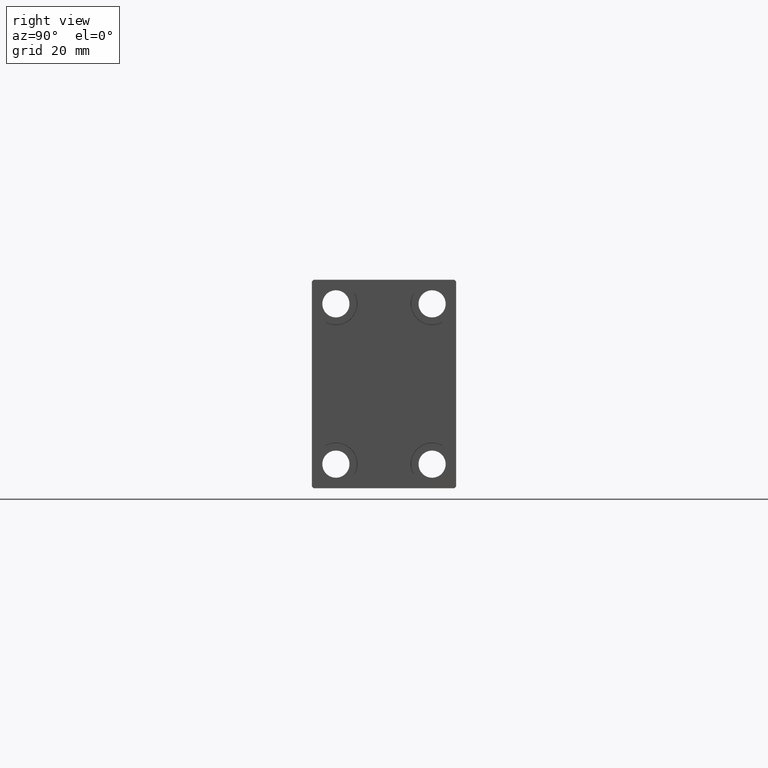
[diagram: clean part render]
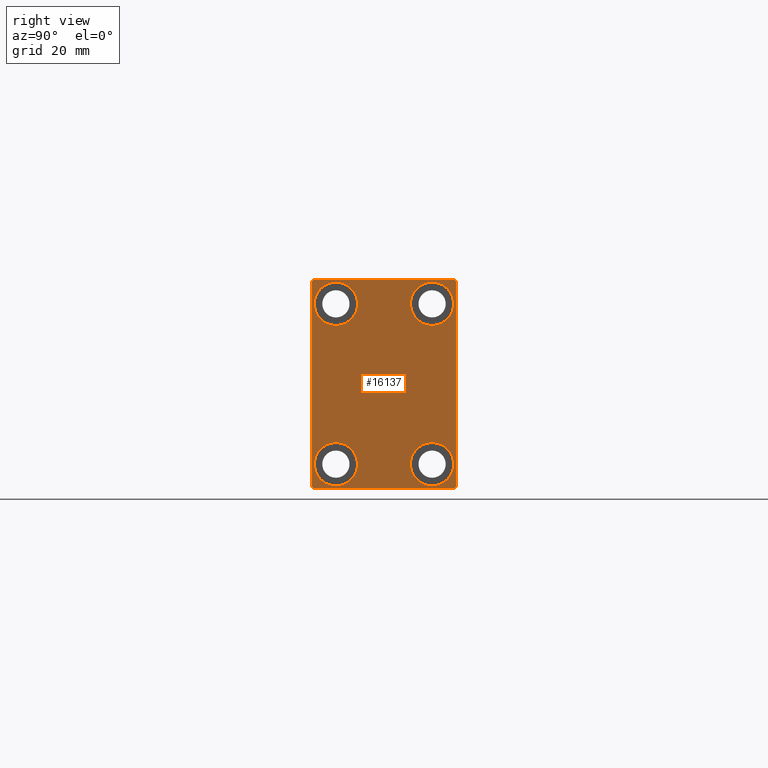
[diagram: same view with one face highlighted and labeled with its STEP entity id]
A machine part, right view. The second image highlights one B-rep face of the part: STEP entity #16137.
In plain terms, the highlighted planar face has unit normal (1, 0, 0).
Its self-contained STEP definition (entity closure, byte-faithful):
#567 = CARTESIAN_POINT ( 'NONE',  ( 150.0000000000000000, 21.99999999999998579, -32.50000000000000711 ) ) ;
#649 = EDGE_CURVE ( 'NONE', #1044, #26526, #34810, .T. ) ;
#989 = EDGE_LOOP ( 'NONE', ( #41905, #30861 ) ) ;
#1044 = VERTEX_POINT ( 'NONE', #29695 ) ;
#1112 = VERTEX_POINT ( 'NONE', #21645 ) ;
#1238 = CARTESIAN_POINT ( 'NONE',  ( 150.0000000000000000, -22.50000000000000711, 31.99999999999999289 ) ) ;
#2074 = EDGE_LOOP ( 'NONE', ( #16953, #6881 ) ) ;
#2586 = FACE_BOUND ( 'NONE', #989, .T. ) ;
#2670 = AXIS2_PLACEMENT_3D ( 'NONE', #9249, #5929, #45685 ) ;
#2984 = CARTESIAN_POINT ( 'NONE',  ( 150.0000000000000000, 22.50000000000000000, -32.50000000000000711 ) ) ;
#3573 = CARTESIAN_POINT ( 'NONE',  ( 150.0000000000000000, -15.00000000000000355, -25.00000000000000000 ) ) ;
#3989 = DIRECTION ( 'NONE',  ( 0.000000000000000000, 0.000000000000000000, 1.000000000000000000 ) ) ;
#4065 = DIRECTION ( 'NONE',  ( -1.000000000000000000, -0.000000000000000000, -0.000000000000000000 ) ) ;
#4277 = ORIENTED_EDGE ( 'NONE', *, *, #41265, .T. ) ;
#4505 = DIRECTION ( 'NONE',  ( 0.000000000000000000, 0.000000000000000000, 1.000000000000000000 ) ) ;
#4676 = EDGE_CURVE ( 'NONE', #26526, #17345, #16678, .T. ) ;
#4710 = VERTEX_POINT ( 'NONE', #39144 ) ;
#4813 = VERTEX_POINT ( 'NONE', #567 ) ;
#5187 = CARTESIAN_POINT ( 'NONE',  ( 150.0000000000000000, -14.99999999999999645, 31.75000000000000000 ) ) ;
#5560 = VERTEX_POINT ( 'NONE', #14944 ) ;
#5641 = ORIENTED_EDGE ( 'NONE', *, *, #29807, .T. ) ;
#5674 = CARTESIAN_POINT ( 'NONE',  ( 150.0000000000000000, 15.00000000000000355, 25.00000000000000000 ) ) ;
#5929 = DIRECTION ( 'NONE',  ( 1.000000000000000000, 0.000000000000000000, 0.000000000000000000 ) ) ;
#6172 = ORIENTED_EDGE ( 'NONE', *, *, #11635, .T. ) ;
#6417 = EDGE_CURVE ( 'NONE', #4813, #18456, #39580, .T. ) ;
#6881 = ORIENTED_EDGE ( 'NONE', *, *, #16890, .T. ) ;
#7388 = DIRECTION ( 'NONE',  ( 0.000000000000000000, 0.000000000000000000, 1.000000000000000000 ) ) ;
#7627 = CARTESIAN_POINT ( 'NONE',  ( 150.0000000000000000, -15.00000000000000355, -25.00000000000000000 ) ) ;
#7633 = CARTESIAN_POINT ( 'NONE',  ( 150.0000000000000000, 27.25000000000000355, -27.25000000000000355 ) ) ;
#7831 = VERTEX_POINT ( 'NONE', #42375 ) ;
#8376 = FACE_BOUND ( 'NONE', #44613, .T. ) ;
#8517 = DIRECTION ( 'NONE',  ( -1.000000000000000000, -0.000000000000000000, -0.000000000000000000 ) ) ;
#8576 = CARTESIAN_POINT ( 'NONE',  ( 150.0000000000000000, 22.49999999999999289, 32.50000000000000000 ) ) ;
#8871 = ORIENTED_EDGE ( 'NONE', *, *, #26902, .T. ) ;
#8972 = ORIENTED_EDGE ( 'NONE', *, *, #43637, .T. ) ;
#8992 = VECTOR ( 'NONE', #40988, 1000.000000000000000 ) ;
#9249 = CARTESIAN_POINT ( 'NONE',  ( 150.0000000000000000, 0.000000000000000000, 0.000000000000000000 ) ) ;
#9294 = VECTOR ( 'NONE', #11564, 1000.000000000000000 ) ;
#9473 = PLANE ( 'NONE',  #2670 ) ;
#9487 = VECTOR ( 'NONE', #10559, 1000.000000000000000 ) ;
#9682 = LINE ( 'NONE', #45890, #45958 ) ;
#9819 = CARTESIAN_POINT ( 'NONE',  ( 150.0000000000000000, -22.50000000000000711, -31.99999999999997868 ) ) ;
#9956 = CIRCLE ( 'NONE', #36398, 6.749999999999999112 ) ;
#10559 = DIRECTION ( 'NONE',  ( 0.000000000000000000, -1.067522139062650425E-16, 1.000000000000000000 ) ) ;
#10656 = ORIENTED_EDGE ( 'NONE', *, *, #23247, .T. ) ;
#11339 = AXIS2_PLACEMENT_3D ( 'NONE', #30509, #8517, #38065 ) ;
#11564 = DIRECTION ( 'NONE',  ( 0.000000000000000000, 0.000000000000000000, -1.000000000000000000 ) ) ;
#11635 = EDGE_CURVE ( 'NONE', #18456, #44693, #42984, .T. ) ;
#12108 = LINE ( 'NONE', #8576, #8992 ) ;
#12215 = VERTEX_POINT ( 'NONE', #5187 ) ;
#12800 = FACE_OUTER_BOUND ( 'NONE', #39322, .T. ) ;
#12960 = CARTESIAN_POINT ( 'NONE',  ( 150.0000000000000000, -14.99999999999999645, 25.00000000000000000 ) ) ;
#12992 = DIRECTION ( 'NONE',  ( -1.000000000000000000, -0.000000000000000000, -0.000000000000000000 ) ) ;
#13207 = CARTESIAN_POINT ( 'NONE',  ( 150.0000000000000000, 22.49999999999999289, 32.00000000000002132 ) ) ;
#13459 = DIRECTION ( 'NONE',  ( -0.000000000000000000, -0.7071067811865525687, 0.7071067811865425767 ) ) ;
#13725 = VECTOR ( 'NONE', #25758, 999.9999999999998863 ) ;
#14700 = DIRECTION ( 'NONE',  ( -1.000000000000000000, -0.000000000000000000, -0.000000000000000000 ) ) ;
#14937 = ORIENTED_EDGE ( 'NONE', *, *, #649, .T. ) ;
#14944 = CARTESIAN_POINT ( 'NONE',  ( 150.0000000000000000, 15.00000000000000355, 31.75000000000000000 ) ) ;
#15220 = EDGE_CURVE ( 'NONE', #4710, #12215, #30741, .T. ) ;
#15836 = LINE ( 'NONE', #37131, #13725 ) ;
#16137 = ADVANCED_FACE ( 'NONE', ( #8376, #2586, #45231, #18995, #12800 ), #9473, .T. ) ;
#16678 = LINE ( 'NONE', #43996, #9294 ) ;
#16890 = EDGE_CURVE ( 'NONE', #24660, #46171, #44282, .T. ) ;
#16953 = ORIENTED_EDGE ( 'NONE', *, *, #42888, .T. ) ;
#17345 = VERTEX_POINT ( 'NONE', #9819 ) ;
#17462 = AXIS2_PLACEMENT_3D ( 'NONE', #7627, #4065, #7388 ) ;
#18098 = CIRCLE ( 'NONE', #38521, 6.749999999999999112 ) ;
#18456 = VERTEX_POINT ( 'NONE', #46247 ) ;
#18995 = FACE_BOUND ( 'NONE', #2074, .T. ) ;
#19342 = ORIENTED_EDGE ( 'NONE', *, *, #35374, .T. ) ;
#20352 = CARTESIAN_POINT ( 'NONE',  ( 150.0000000000000000, -22.50000000000000711, -32.50000000000000711 ) ) ;
#21645 = CARTESIAN_POINT ( 'NONE',  ( 150.0000000000000000, -21.99999999999999289, -32.50000000000000711 ) ) ;
#21819 = DIRECTION ( 'NONE',  ( -0.000000000000000000, 0.7071067811865474617, 0.7071067811865474617 ) ) ;
#23247 = EDGE_CURVE ( 'NONE', #44693, #7831, #9682, .T. ) ;
#23467 = CARTESIAN_POINT ( 'NONE',  ( 150.0000000000000000, -27.25000000000000000, 27.25000000000000000 ) ) ;
#23859 = AXIS2_PLACEMENT_3D ( 'NONE', #3573, #14700, #29128 ) ;
#23927 = AXIS2_PLACEMENT_3D ( 'NONE', #12960, #40916, #27391 ) ;
#24660 = VERTEX_POINT ( 'NONE', #26288 ) ;
#24704 = EDGE_CURVE ( 'NONE', #7831, #1044, #12108, .T. ) ;
#24757 = DIRECTION ( 'NONE',  ( 0.000000000000000000, 0.000000000000000000, 1.000000000000000000 ) ) ;
#25391 = VERTEX_POINT ( 'NONE', #44063 ) ;
#25549 = AXIS2_PLACEMENT_3D ( 'NONE', #28785, #42995, #24757 ) ;
#25758 = DIRECTION ( 'NONE',  ( -0.000000000000000000, 0.7071067811865376918, -0.7071067811865574537 ) ) ;
#25989 = DIRECTION ( 'NONE',  ( -1.000000000000000000, -0.000000000000000000, -0.000000000000000000 ) ) ;
#26288 = CARTESIAN_POINT ( 'NONE',  ( 150.0000000000000000, -15.00000000000000355, -18.25000000000000355 ) ) ;
#26444 = CIRCLE ( 'NONE', #11339, 6.749999999999999112 ) ;
#26526 = VERTEX_POINT ( 'NONE', #1238 ) ;
#26902 = EDGE_CURVE ( 'NONE', #25391, #5560, #18098, .T. ) ;
#27391 = DIRECTION ( 'NONE',  ( 0.000000000000000000, 0.000000000000000000, 1.000000000000000000 ) ) ;
#28785 = CARTESIAN_POINT ( 'NONE',  ( 150.0000000000000000, -14.99999999999999645, 25.00000000000000000 ) ) ;
#29128 = DIRECTION ( 'NONE',  ( 0.000000000000000000, 0.000000000000000000, 1.000000000000000000 ) ) ;
#29695 = CARTESIAN_POINT ( 'NONE',  ( 150.0000000000000000, -21.99999999999999289, 32.49999999999999289 ) ) ;
#29807 = EDGE_CURVE ( 'NONE', #45854, #34776, #9956, .T. ) ;
#30509 = CARTESIAN_POINT ( 'NONE',  ( 150.0000000000000000, 14.99999999999999645, -25.00000000000000000 ) ) ;
#30545 = ORIENTED_EDGE ( 'NONE', *, *, #4676, .T. ) ;
#30741 = CIRCLE ( 'NONE', #23927, 6.749999999999999112 ) ;
#30861 = ORIENTED_EDGE ( 'NONE', *, *, #31340, .T. ) ;
#31066 = CIRCLE ( 'NONE', #17462, 6.749999999999999112 ) ;
#31340 = EDGE_CURVE ( 'NONE', #12215, #4710, #39137, .T. ) ;
#31616 = EDGE_LOOP ( 'NONE', ( #8871, #8972 ) ) ;
#31686 = ORIENTED_EDGE ( 'NONE', *, *, #44595, .T. ) ;
#31857 = AXIS2_PLACEMENT_3D ( 'NONE', #33330, #25989, #3989 ) ;
#32200 = ORIENTED_EDGE ( 'NONE', *, *, #24704, .T. ) ;
#32464 = CARTESIAN_POINT ( 'NONE',  ( 150.0000000000000000, -15.00000000000000355, -31.75000000000000000 ) ) ;
#33330 = CARTESIAN_POINT ( 'NONE',  ( 150.0000000000000000, 15.00000000000000355, 25.00000000000000000 ) ) ;
#33614 = DIRECTION ( 'NONE',  ( -1.000000000000000000, -0.000000000000000000, -0.000000000000000000 ) ) ;
#34776 = VERTEX_POINT ( 'NONE', #44403 ) ;
#34796 = DIRECTION ( 'NONE',  ( 0.000000000000000000, 1.000000000000000000, 0.000000000000000000 ) ) ;
#34810 = LINE ( 'NONE', #23467, #38635 ) ;
#34917 = CARTESIAN_POINT ( 'NONE',  ( 150.0000000000000000, 14.99999999999999645, -18.25000000000000355 ) ) ;
#35019 = LINE ( 'NONE', #20352, #39336 ) ;
#35374 = EDGE_CURVE ( 'NONE', #34776, #45854, #26444, .T. ) ;
#36398 = AXIS2_PLACEMENT_3D ( 'NONE', #36916, #33614, #4505 ) ;
#36916 = CARTESIAN_POINT ( 'NONE',  ( 150.0000000000000000, 14.99999999999999645, -25.00000000000000000 ) ) ;
#37131 = CARTESIAN_POINT ( 'NONE',  ( 150.0000000000000000, -27.25000000000030553, -27.24999999999954881 ) ) ;
#37850 = DIRECTION ( 'NONE',  ( 0.000000000000000000, 0.000000000000000000, 1.000000000000000000 ) ) ;
#38065 = DIRECTION ( 'NONE',  ( 0.000000000000000000, 0.000000000000000000, 1.000000000000000000 ) ) ;
#38521 = AXIS2_PLACEMENT_3D ( 'NONE', #5674, #12992, #37850 ) ;
#38635 = VECTOR ( 'NONE', #42141, 1000.000000000000114 ) ;
#39137 = CIRCLE ( 'NONE', #25549, 6.749999999999999112 ) ;
#39144 = CARTESIAN_POINT ( 'NONE',  ( 150.0000000000000000, -14.99999999999999645, 18.25000000000000355 ) ) ;
#39322 = EDGE_LOOP ( 'NONE', ( #32200, #14937, #30545, #31686, #4277, #40644, #6172, #10656 ) ) ;
#39336 = VECTOR ( 'NONE', #34796, 1000.000000000000000 ) ;
#39580 = LINE ( 'NONE', #7633, #41089 ) ;
#40192 = CIRCLE ( 'NONE', #31857, 6.749999999999999112 ) ;
#40644 = ORIENTED_EDGE ( 'NONE', *, *, #6417, .T. ) ;
#40916 = DIRECTION ( 'NONE',  ( -1.000000000000000000, -0.000000000000000000, -0.000000000000000000 ) ) ;
#40988 = DIRECTION ( 'NONE',  ( 0.000000000000000000, -1.000000000000000000, -1.541976423090495387E-16 ) ) ;
#41089 = VECTOR ( 'NONE', #21819, 1000.000000000000114 ) ;
#41265 = EDGE_CURVE ( 'NONE', #1112, #4813, #35019, .T. ) ;
#41905 = ORIENTED_EDGE ( 'NONE', *, *, #15220, .T. ) ;
#42141 = DIRECTION ( 'NONE',  ( 0.000000000000000000, -0.7071067811865474617, -0.7071067811865474617 ) ) ;
#42375 = CARTESIAN_POINT ( 'NONE',  ( 150.0000000000000000, 22.00000000000000711, 32.50000000000000000 ) ) ;
#42888 = EDGE_CURVE ( 'NONE', #46171, #24660, #31066, .T. ) ;
#42984 = LINE ( 'NONE', #2984, #9487 ) ;
#42995 = DIRECTION ( 'NONE',  ( -1.000000000000000000, -0.000000000000000000, -0.000000000000000000 ) ) ;
#43637 = EDGE_CURVE ( 'NONE', #5560, #25391, #40192, .T. ) ;
#43996 = CARTESIAN_POINT ( 'NONE',  ( 150.0000000000000000, -22.50000000000000711, 32.49999999999999289 ) ) ;
#44063 = CARTESIAN_POINT ( 'NONE',  ( 150.0000000000000000, 15.00000000000000355, 18.25000000000000355 ) ) ;
#44282 = CIRCLE ( 'NONE', #23859, 6.749999999999999112 ) ;
#44403 = CARTESIAN_POINT ( 'NONE',  ( 150.0000000000000000, 14.99999999999999645, -31.75000000000000000 ) ) ;
#44595 = EDGE_CURVE ( 'NONE', #17345, #1112, #15836, .T. ) ;
#44613 = EDGE_LOOP ( 'NONE', ( #19342, #5641 ) ) ;
#44693 = VERTEX_POINT ( 'NONE', #13207 ) ;
#45231 = FACE_BOUND ( 'NONE', #31616, .T. ) ;
#45685 = DIRECTION ( 'NONE',  ( 0.000000000000000000, 0.000000000000000000, -1.000000000000000000 ) ) ;
#45854 = VERTEX_POINT ( 'NONE', #34917 ) ;
#45890 = CARTESIAN_POINT ( 'NONE',  ( 150.0000000000000000, 27.24999999999985079, 27.25000000000023093 ) ) ;
#45958 = VECTOR ( 'NONE', #13459, 999.9999999999998863 ) ;
#46171 = VERTEX_POINT ( 'NONE', #32464 ) ;
#46247 = CARTESIAN_POINT ( 'NONE',  ( 150.0000000000000000, 22.50000000000000000, -32.00000000000000711 ) ) ;